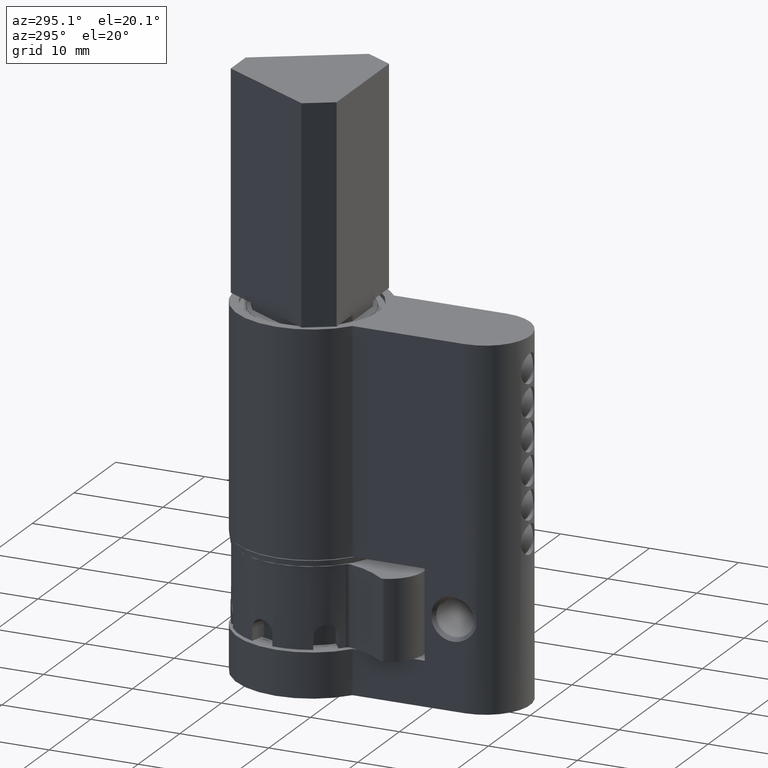
[diagram: clean part render]
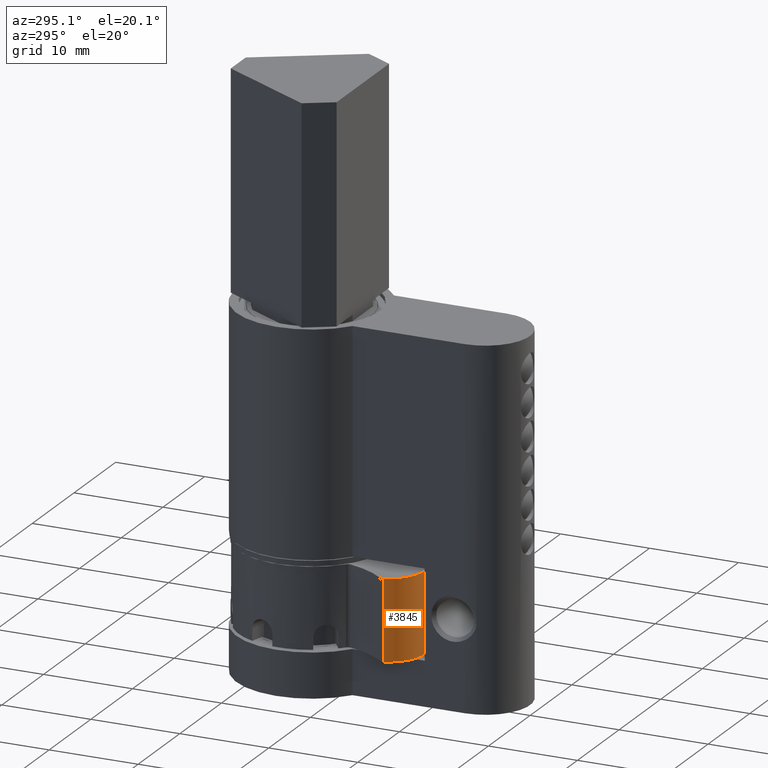
[diagram: same view with one face highlighted and labeled with its STEP entity id]
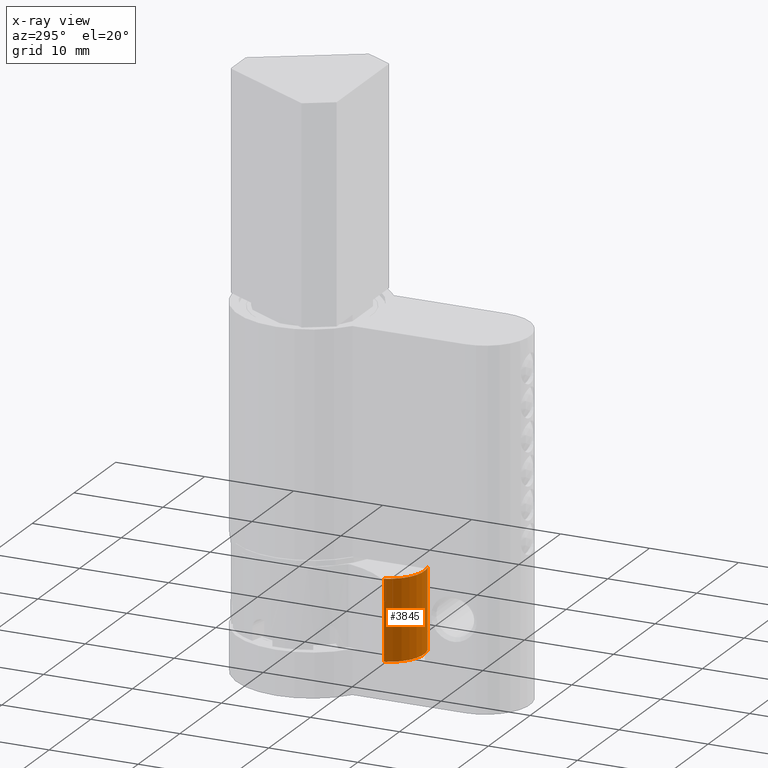
[diagram: x-ray of the same camera — body ghosted, the highlighted face saturated]
A machine part, auxiliary view. The second image highlights one B-rep face of the part: STEP entity #3845.
The next image is the same camera in x-ray: the body ghosted, the highlighted face saturated — about 0% of this face is hidden behind the body in this view.
In plain terms, the highlighted cylindrical surface (partial cylindrical patch) has radius 4 mm, axis along (-0, 0, -1).
Its self-contained STEP definition (entity closure, byte-faithful):
#373 = CARTESIAN_POINT ( 'NONE',  ( 3.142857142857142800, 1.525641703473032300, -4.500000000000000000 ) ) ;
#644 = DIRECTION ( 'NONE',  ( 0.0000000000000000000, 0.0000000000000000000, 1.000000000000000000 ) ) ;
#1760 = DIRECTION ( 'NONE',  ( 0.0000000000000000000, 0.0000000000000000000, 1.000000000000000000 ) ) ;
#2277 = DIRECTION ( 'NONE',  ( -1.000000000000000000, 0.0000000000000000000, 0.0000000000000000000 ) ) ;
#2503 = AXIS2_PLACEMENT_3D ( 'NONE', #4915, #1760, #7142 ) ;
#2632 = AXIS2_PLACEMENT_3D ( 'NONE', #11196, #644, #4737 ) ;
#3306 = FACE_OUTER_BOUND ( 'NONE', #7308, .T. ) ;
#3845 = ADVANCED_FACE ( 'NONE', ( #3306 ), #10990, .T. ) ;
#4737 = DIRECTION ( 'NONE',  ( 1.000000000000000000, 0.0000000000000000000, 0.0000000000000000000 ) ) ;
#4915 = CARTESIAN_POINT ( 'NONE',  ( 0.0000000000000000000, 4.000000000000000000, 4.500000000000000000 ) ) ;
#5055 = DIRECTION ( 'NONE',  ( -0.0000000000000000000, -0.0000000000000000000, -1.000000000000000000 ) ) ;
#5245 = ORIENTED_EDGE ( 'NONE', *, *, #6415, .F. ) ;
#5900 = AXIS2_PLACEMENT_3D ( 'NONE', #7371, #9682, #2277 ) ;
#5924 = DIRECTION ( 'NONE',  ( -0.0000000000000000000, -0.0000000000000000000, -1.000000000000000000 ) ) ;
#5967 = CARTESIAN_POINT ( 'NONE',  ( 3.142857142857142800, 1.525641703473032300, 4.500000000000000000 ) ) ;
#6222 = ORIENTED_EDGE ( 'NONE', *, *, #10074, .T. ) ;
#6415 = EDGE_CURVE ( 'NONE', #9797, #7914, #11651, .T. ) ;
#6465 = CIRCLE ( 'NONE', #2632, 4.000000000000000000 ) ;
#6631 = CARTESIAN_POINT ( 'NONE',  ( -3.142857142857142800, 1.525641703473032300, -4.500000000000000000 ) ) ;
#7142 = DIRECTION ( 'NONE',  ( 1.000000000000000000, 0.0000000000000000000, 0.0000000000000000000 ) ) ;
#7308 = EDGE_LOOP ( 'NONE', ( #6222, #8673, #5245, #8286 ) ) ;
#7371 = CARTESIAN_POINT ( 'NONE',  ( 0.0000000000000000000, 4.000000000000000000, 4.500000000000000000 ) ) ;
#7638 = VERTEX_POINT ( 'NONE', #373 ) ;
#7914 = VERTEX_POINT ( 'NONE', #5967 ) ;
#8107 = CARTESIAN_POINT ( 'NONE',  ( 3.142857142857142800, 1.525641703473032300, 4.500000000000000000 ) ) ;
#8117 = LINE ( 'NONE', #13680, #12318 ) ;
#8286 = ORIENTED_EDGE ( 'NONE', *, *, #8957, .T. ) ;
#8673 = ORIENTED_EDGE ( 'NONE', *, *, #10146, .F. ) ;
#8957 = EDGE_CURVE ( 'NONE', #9797, #11793, #8117, .T. ) ;
#9431 = VECTOR ( 'NONE', #5924, 1000.000000000000000 ) ;
#9682 = DIRECTION ( 'NONE',  ( -0.0000000000000000000, -0.0000000000000000000, -1.000000000000000000 ) ) ;
#9797 = VERTEX_POINT ( 'NONE', #10311 ) ;
#10074 = EDGE_CURVE ( 'NONE', #11793, #7638, #6465, .T. ) ;
#10146 = EDGE_CURVE ( 'NONE', #7914, #7638, #13638, .T. ) ;
#10311 = CARTESIAN_POINT ( 'NONE',  ( -3.142857142857142800, 1.525641703473032300, 4.500000000000000000 ) ) ;
#10990 = CYLINDRICAL_SURFACE ( 'NONE', #5900, 4.000000000000000000 ) ;
#11196 = CARTESIAN_POINT ( 'NONE',  ( 0.0000000000000000000, 4.000000000000000000, -4.500000000000000000 ) ) ;
#11651 = CIRCLE ( 'NONE', #2503, 4.000000000000000000 ) ;
#11793 = VERTEX_POINT ( 'NONE', #6631 ) ;
#12318 = VECTOR ( 'NONE', #5055, 1000.000000000000000 ) ;
#13638 = LINE ( 'NONE', #8107, #9431 ) ;
#13680 = CARTESIAN_POINT ( 'NONE',  ( -3.142857142857142800, 1.525641703473032300, 4.500000000000000000 ) ) ;